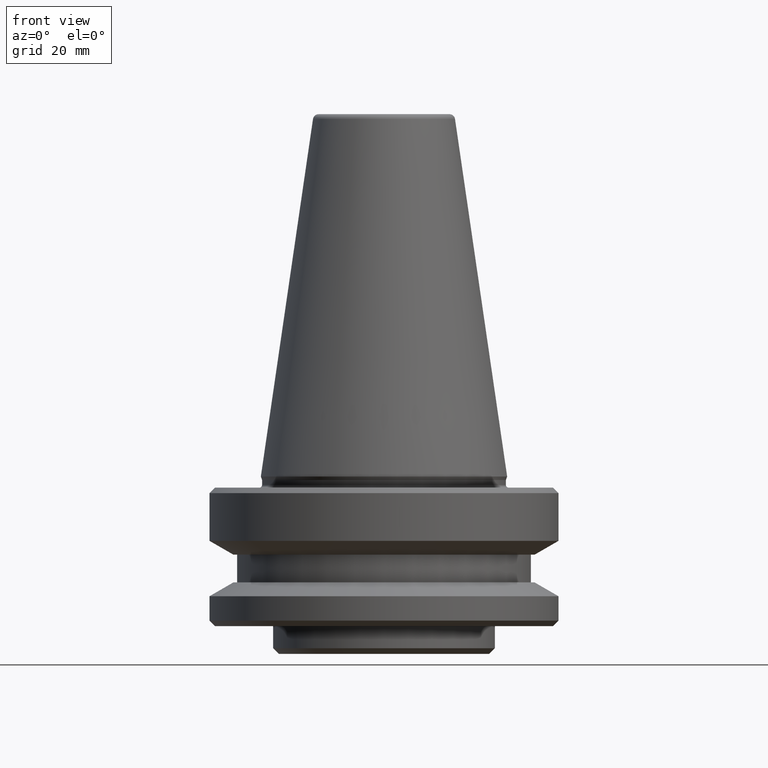
[diagram: clean part render]
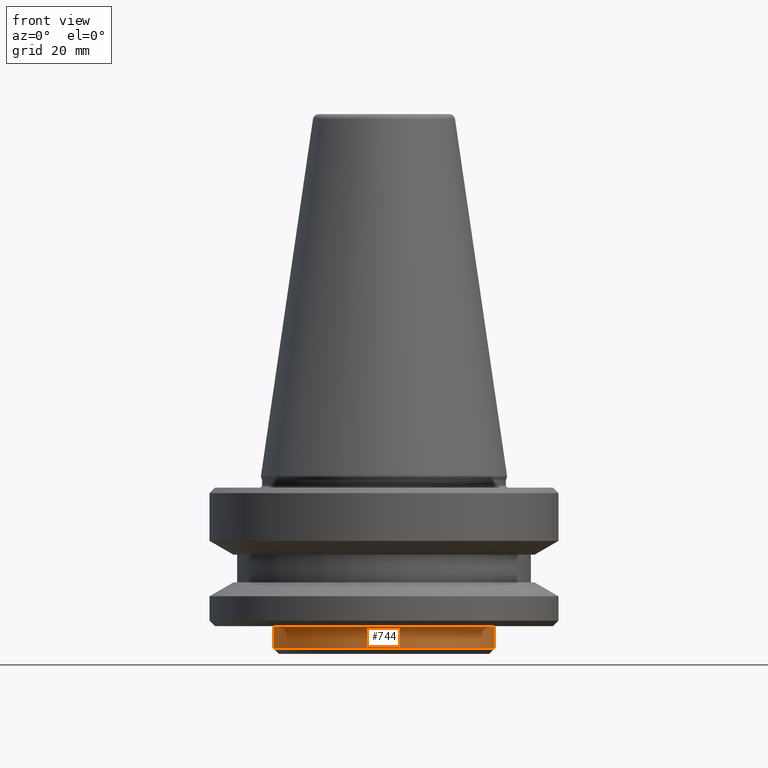
[diagram: same view with one face highlighted and labeled with its STEP entity id]
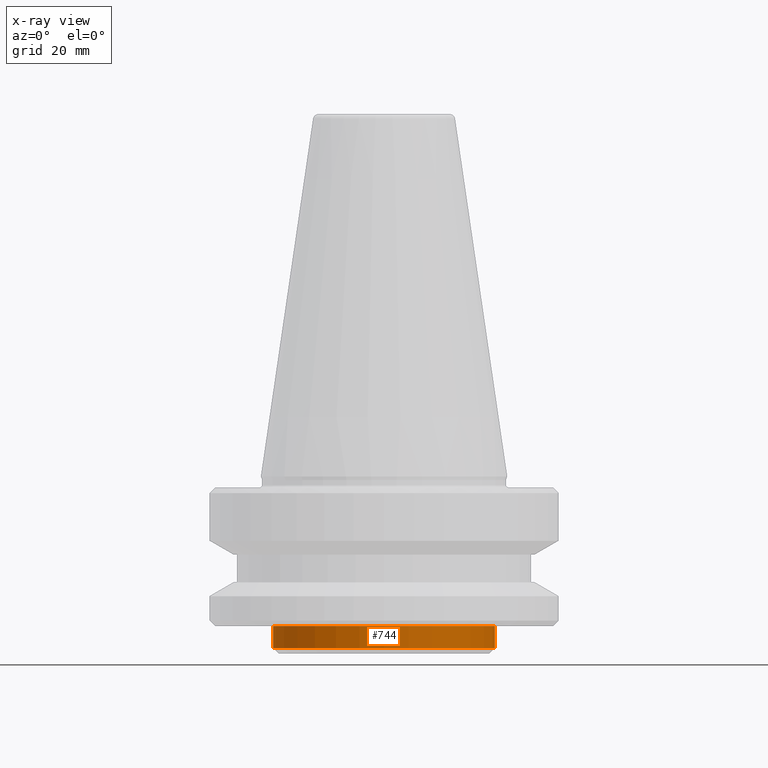
[diagram: x-ray of the same camera — body ghosted, the highlighted face saturated]
A machine part, front view. The second image highlights one B-rep face of the part: STEP entity #744.
The next image is the same camera in x-ray: the body ghosted, the highlighted face saturated — about 0% of this face is hidden behind the body in this view.
In plain terms, the highlighted cylindrical surface (partial cylindrical patch) has radius 20 mm, axis along (-0, -0, 1).
Its self-contained STEP definition (entity closure, byte-faithful):
#9 = DIRECTION ( 'NONE',  ( 1.000000000000000000, 0.0000000000000000000, 0.0000000000000000000 ) ) ;
#17 = DIRECTION ( 'NONE',  ( -0.0000000000000000000, -0.0000000000000000000, 1.000000000000000000 ) ) ;
#49 = AXIS2_PLACEMENT_3D ( 'NONE', #762, #252, #726 ) ;
#63 = VERTEX_POINT ( 'NONE', #593 ) ;
#103 = VECTOR ( 'NONE', #384, 1000.000000000000000 ) ;
#130 = EDGE_CURVE ( 'NONE', #303, #277, #304, .T. ) ;
#201 = AXIS2_PLACEMENT_3D ( 'NONE', #370, #17, #791 ) ;
#230 = CARTESIAN_POINT ( 'NONE',  ( 19.99999999999998900, 0.0000000000000000000, 83.99096479192306200 ) ) ;
#252 = DIRECTION ( 'NONE',  ( -0.0000000000000000000, -0.0000000000000000000, 1.000000000000000000 ) ) ;
#277 = VERTEX_POINT ( 'NONE', #547 ) ;
#290 = EDGE_LOOP ( 'NONE', ( #439, #504, #486, #328 ) ) ;
#303 = VERTEX_POINT ( 'NONE', #774 ) ;
#304 = LINE ( 'NONE', #997, #103 ) ;
#328 = ORIENTED_EDGE ( 'NONE', *, *, #360, .T. ) ;
#346 = AXIS2_PLACEMENT_3D ( 'NONE', #814, #394, #9 ) ;
#360 = EDGE_CURVE ( 'NONE', #699, #277, #531, .T. ) ;
#370 = CARTESIAN_POINT ( 'NONE',  ( 0.0000000000000000000, 0.0000000000000000000, 83.99096479192306200 ) ) ;
#384 = DIRECTION ( 'NONE',  ( -0.0000000000000000000, -0.0000000000000000000, 1.000000000000000000 ) ) ;
#394 = DIRECTION ( 'NONE',  ( 0.0000000000000000000, 0.0000000000000000000, -1.000000000000000000 ) ) ;
#439 = ORIENTED_EDGE ( 'NONE', *, *, #130, .F. ) ;
#441 = FACE_OUTER_BOUND ( 'NONE', #290, .T. ) ;
#486 = ORIENTED_EDGE ( 'NONE', *, *, #849, .T. ) ;
#504 = ORIENTED_EDGE ( 'NONE', *, *, #740, .T. ) ;
#531 = CIRCLE ( 'NONE', #346, 19.99999999999998900 ) ;
#547 = CARTESIAN_POINT ( 'NONE',  ( -19.99999999999998900, 2.449293598294705300E-015, -27.00000000000550700 ) ) ;
#593 = CARTESIAN_POINT ( 'NONE',  ( 19.99999999999998900, 0.0000000000000000000, -30.99311263393395100 ) ) ;
#618 = CYLINDRICAL_SURFACE ( 'NONE', #201, 19.99999999999998900 ) ;
#699 = VERTEX_POINT ( 'NONE', #979 ) ;
#722 = LINE ( 'NONE', #230, #911 ) ;
#726 = DIRECTION ( 'NONE',  ( 1.000000000000000000, 0.0000000000000000000, 0.0000000000000000000 ) ) ;
#740 = EDGE_CURVE ( 'NONE', #303, #63, #847, .T. ) ;
#744 = ADVANCED_FACE ( 'NONE', ( #441 ), #618, .T. ) ;
#762 = CARTESIAN_POINT ( 'NONE',  ( 0.0000000000000000000, 0.0000000000000000000, -30.99311263393395100 ) ) ;
#774 = CARTESIAN_POINT ( 'NONE',  ( -19.99999999999998900, 2.449293598294705300E-015, -30.99311263393395100 ) ) ;
#791 = DIRECTION ( 'NONE',  ( 1.000000000000000000, 0.0000000000000000000, 0.0000000000000000000 ) ) ;
#814 = CARTESIAN_POINT ( 'NONE',  ( 0.0000000000000000000, 0.0000000000000000000, -27.00000000000550700 ) ) ;
#847 = CIRCLE ( 'NONE', #49, 19.99999999999998900 ) ;
#849 = EDGE_CURVE ( 'NONE', #63, #699, #722, .T. ) ;
#911 = VECTOR ( 'NONE', #956, 1000.000000000000000 ) ;
#956 = DIRECTION ( 'NONE',  ( -0.0000000000000000000, -0.0000000000000000000, 1.000000000000000000 ) ) ;
#979 = CARTESIAN_POINT ( 'NONE',  ( 19.99999999999998900, 0.0000000000000000000, -27.00000000000550700 ) ) ;
#997 = CARTESIAN_POINT ( 'NONE',  ( -19.99999999999998900, 2.449293598294705300E-015, 83.99096479192306200 ) ) ;